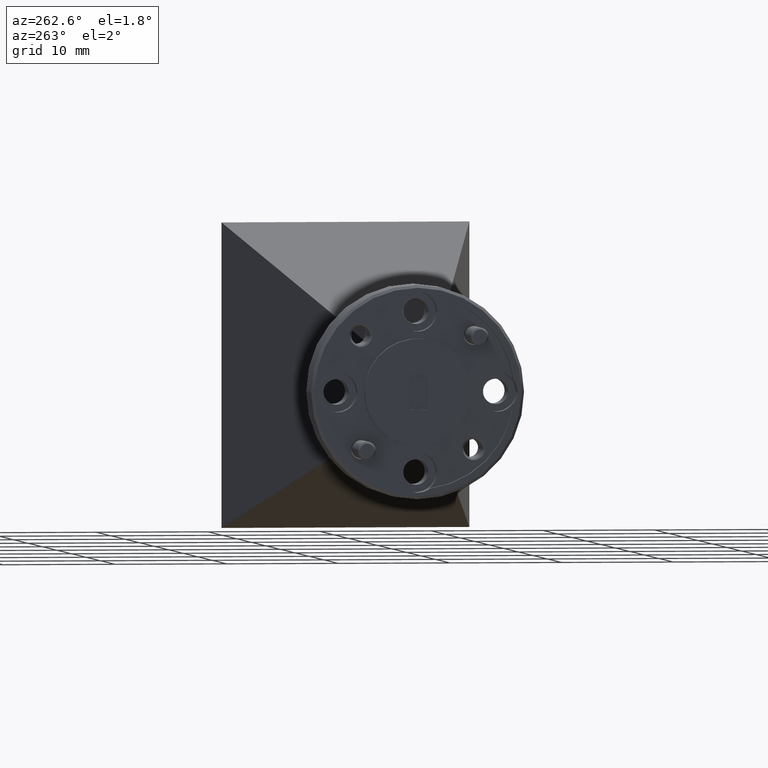
[diagram: clean part render]
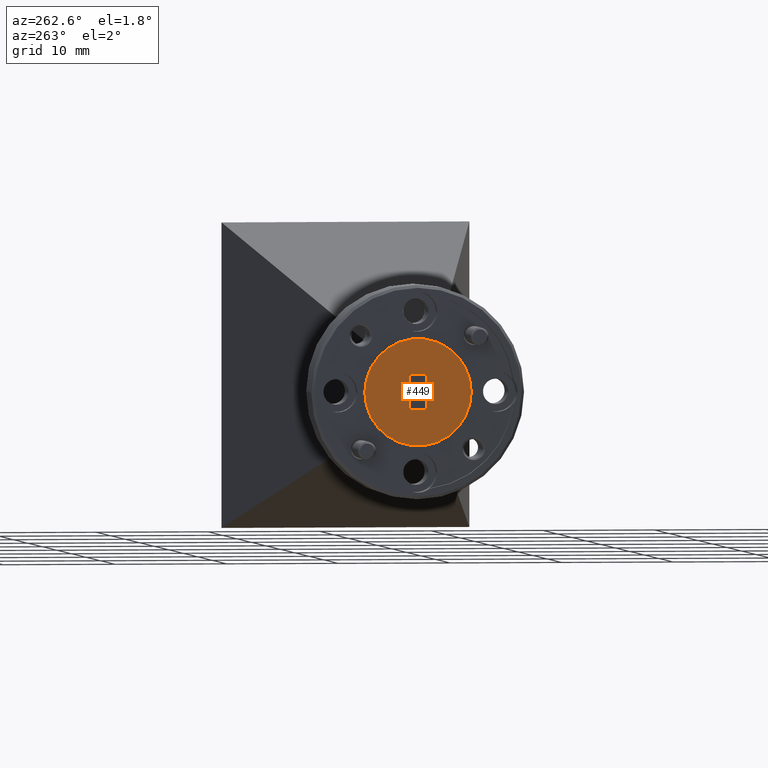
[diagram: same view with one face highlighted and labeled with its STEP entity id]
A machine part, auxiliary view. The second image highlights one B-rep face of the part: STEP entity #449.
In plain terms, the highlighted planar face has unit normal (-1, -0, 0).
Its self-contained STEP definition (entity closure, byte-faithful):
#93 = ORIENTED_EDGE ( 'NONE', *, *, #696, .F. ) ;
#112 = DIRECTION ( 'NONE',  ( 8.537024980200824776E-16, -1.000000000000000000, 0.000000000000000000 ) ) ;
#283 = ORIENTED_EDGE ( 'NONE', *, *, #1227, .F. ) ;
#298 = CARTESIAN_POINT ( 'NONE',  ( -5.520880454576205132, 0.2181933872041555700, 2.109983861534752148 ) ) ;
#313 = DIRECTION ( 'NONE',  ( 1.000000000000000000, 8.537024980200825762E-16, -0.000000000000000000 ) ) ;
#317 = VERTEX_POINT ( 'NONE', #861 ) ;
#331 = EDGE_CURVE ( 'NONE', #1254, #577, #834, .T. ) ;
#341 = EDGE_LOOP ( 'NONE', ( #283, #1847, #2593, #1032 ) ) ;
#449 = ADVANCED_FACE ( 'NONE', ( #2543, #1503 ), #1544, .T. ) ;
#466 = ORIENTED_EDGE ( 'NONE', *, *, #1877, .F. ) ;
#479 = VECTOR ( 'NONE', #2570, 39.37007874015748143 ) ;
#577 = VERTEX_POINT ( 'NONE', #2187 ) ;
#696 = EDGE_CURVE ( 'NONE', #1022, #1620, #2006, .T. ) ;
#728 = CARTESIAN_POINT ( 'NONE',  ( -5.520880454576205132, 0.3751933872041554041, 2.048983861534752204 ) ) ;
#834 = LINE ( 'NONE', #879, #1313 ) ;
#861 = CARTESIAN_POINT ( 'NONE',  ( -5.520880454576205132, 0.3751933872041554041, 2.048983861534752204 ) ) ;
#879 = CARTESIAN_POINT ( 'NONE',  ( -5.520880454576205132, 0.4361933872041554028, 2.170983861534752091 ) ) ;
#905 = LINE ( 'NONE', #1295, #1377 ) ;
#1022 = VERTEX_POINT ( 'NONE', #1126 ) ;
#1032 = ORIENTED_EDGE ( 'NONE', *, *, #2498, .F. ) ;
#1033 = CIRCLE ( 'NONE', #1973, 0.1874999999999999722 ) ;
#1038 = VECTOR ( 'NONE', #2294, 39.37007874015748143 ) ;
#1126 = CARTESIAN_POINT ( 'NONE',  ( -5.520880454576205132, 0.5931933872041554867, 2.109983861534752148 ) ) ;
#1130 = CARTESIAN_POINT ( 'NONE',  ( -5.520880454576205132, 0.4361933872041554028, 2.048983861534752204 ) ) ;
#1227 = EDGE_CURVE ( 'NONE', #2632, #317, #905, .T. ) ;
#1254 = VERTEX_POINT ( 'NONE', #2555 ) ;
#1257 = EDGE_CURVE ( 'NONE', #577, #2632, #1743, .T. ) ;
#1295 = CARTESIAN_POINT ( 'NONE',  ( -5.520880454576205132, 0.4361933872041554028, 2.048983861534752204 ) ) ;
#1313 = VECTOR ( 'NONE', #1881, 39.37007874015748143 ) ;
#1332 = CARTESIAN_POINT ( 'NONE',  ( -5.520880454576205132, 0.4056933872041555422, 2.109983861534752148 ) ) ;
#1377 = VECTOR ( 'NONE', #2504, 39.37007874015748143 ) ;
#1503 = FACE_OUTER_BOUND ( 'NONE', #2480, .T. ) ;
#1544 = PLANE ( 'NONE',  #2558 ) ;
#1620 = VERTEX_POINT ( 'NONE', #298 ) ;
#1736 = AXIS2_PLACEMENT_3D ( 'NONE', #1891, #2093, #2251 ) ;
#1743 = LINE ( 'NONE', #1130, #479 ) ;
#1758 = CARTESIAN_POINT ( 'NONE',  ( -5.520880454576205132, 0.4056933872041555422, 2.109983861534752148 ) ) ;
#1847 = ORIENTED_EDGE ( 'NONE', *, *, #1257, .F. ) ;
#1877 = EDGE_CURVE ( 'NONE', #1620, #1022, #1033, .T. ) ;
#1881 = DIRECTION ( 'NONE',  ( -4.478439333875842816E-15, 1.000000000000000000, -0.000000000000000000 ) ) ;
#1891 = CARTESIAN_POINT ( 'NONE',  ( -5.520880454576205132, 0.4056933872041555422, 2.109983861534752148 ) ) ;
#1943 = DIRECTION ( 'NONE',  ( 0.000000000000000000, 1.000000000000000000, 0.000000000000000000 ) ) ;
#1944 = DIRECTION ( 'NONE',  ( -1.000000000000000000, -8.537024980200824776E-16, 0.000000000000000000 ) ) ;
#1973 = AXIS2_PLACEMENT_3D ( 'NONE', #1332, #313, #1943 ) ;
#2006 = CIRCLE ( 'NONE', #1736, 0.1874999999999999722 ) ;
#2059 = CARTESIAN_POINT ( 'NONE',  ( -5.520880454576205132, 0.4361933872041554028, 2.048983861534752204 ) ) ;
#2093 = DIRECTION ( 'NONE',  ( 1.000000000000000000, 8.537024980200825762E-16, -0.000000000000000000 ) ) ;
#2187 = CARTESIAN_POINT ( 'NONE',  ( -5.520880454576205132, 0.4361933872041554028, 2.170983861534752091 ) ) ;
#2251 = DIRECTION ( 'NONE',  ( 0.000000000000000000, 1.000000000000000000, 0.000000000000000000 ) ) ;
#2294 = DIRECTION ( 'NONE',  ( 0.000000000000000000, 0.000000000000000000, 1.000000000000000000 ) ) ;
#2306 = LINE ( 'NONE', #728, #1038 ) ;
#2480 = EDGE_LOOP ( 'NONE', ( #93, #466 ) ) ;
#2498 = EDGE_CURVE ( 'NONE', #317, #1254, #2306, .T. ) ;
#2504 = DIRECTION ( 'NONE',  ( 4.478439333875842816E-15, -1.000000000000000000, 1.399512291836200880E-16 ) ) ;
#2543 = FACE_BOUND ( 'NONE', #341, .T. ) ;
#2555 = CARTESIAN_POINT ( 'NONE',  ( -5.520880454576205132, 0.3751933872041554041, 2.170983861534752091 ) ) ;
#2558 = AXIS2_PLACEMENT_3D ( 'NONE', #1758, #1944, #112 ) ;
#2570 = DIRECTION ( 'NONE',  ( -0.000000000000000000, -0.000000000000000000, -1.000000000000000000 ) ) ;
#2593 = ORIENTED_EDGE ( 'NONE', *, *, #331, .F. ) ;
#2632 = VERTEX_POINT ( 'NONE', #2059 ) ;